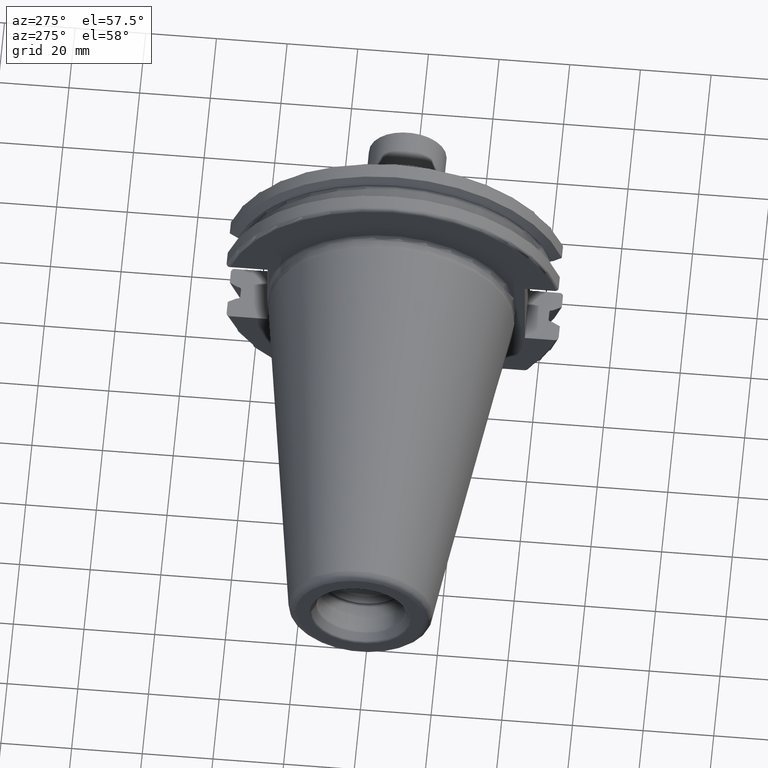
[diagram: clean part render]
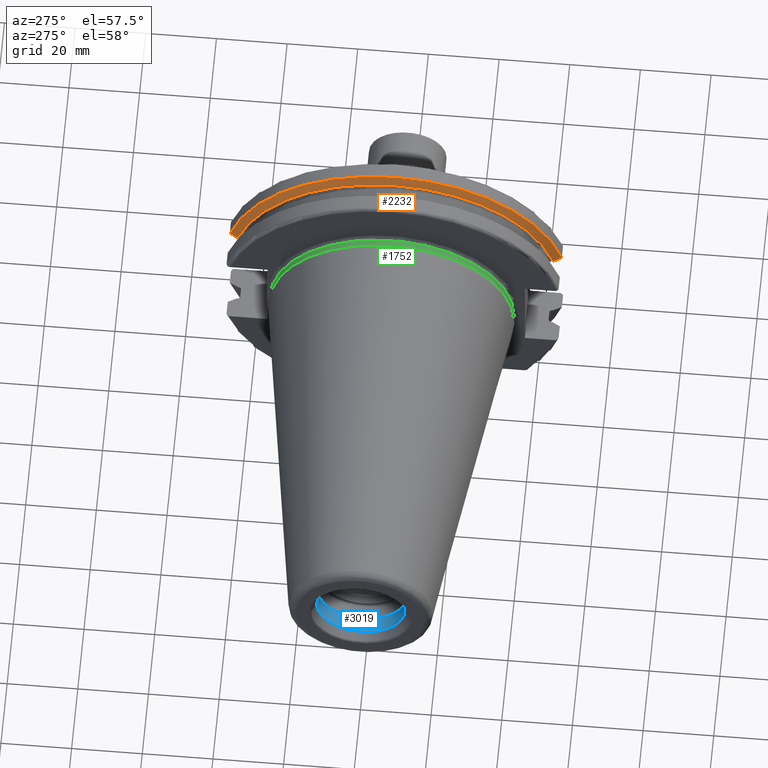
[diagram: same view with three faces highlighted in distinct colors, each labeled with its STEP entity id]
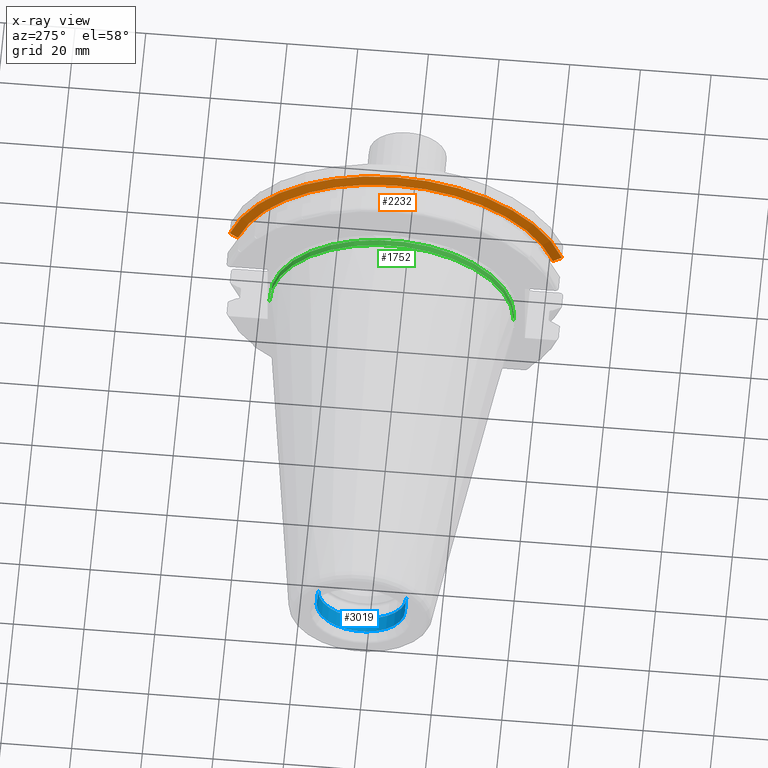
[diagram: x-ray of the same camera — body ghosted, the three highlighted faces saturated]
A machine part, auxiliary view with three faces highlighted in distinct colors.
The next image is the same camera in x-ray (body ghosted, the three faces saturated) — at least one of them is partly hidden behind the body in this view.
Their STEP definitions:

[orange] entity #2232 — the highlighted conical surface has half-angle 60 deg.
#457=CARTESIAN_POINT('',(1.441537838583E1,4.699929686974E1,1.29E1));
#458=CARTESIAN_POINT('',(1.426451908496E1,4.672833723043E1,1.29E1));
#459=CARTESIAN_POINT('',(1.396501135619E1,4.619006057422E1,1.29E1));
#460=CARTESIAN_POINT('',(1.352242021955E1,4.539363402665E1,1.29E1));
#461=CARTESIAN_POINT('',(1.323173924582E1,4.486988275438E1,1.29E1));
#462=CARTESIAN_POINT('',(1.30875E1,4.460981716077E1,1.29E1));
#464=CARTESIAN_POINT('',(1.30875E1,-4.460981716077E1,1.29E1));
#465=CARTESIAN_POINT('',(1.323171622645E1,-4.486984125009E1,1.29E1));
#466=CARTESIAN_POINT('',(1.352236645045E1,-4.539353719098E1,1.29E1));
#467=CARTESIAN_POINT('',(1.396495664446E1,-4.618996220278E1,1.29E1));
#468=CARTESIAN_POINT('',(1.426449561388E1,-4.672829507383E1,1.29E1));
#469=CARTESIAN_POINT('',(1.441537838583E1,-4.699929686974E1,1.29E1));
#471=CARTESIAN_POINT('',(1.30875E1,0.E0,0.E0));
#472=DIRECTION('',(1.E0,0.E0,0.E0));
#473=DIRECTION('',(0.E0,9.606411165078E-1,2.777924499957E-1));
#474=AXIS2_PLACEMENT_3D('',#471,#472,#473);
#502=CARTESIAN_POINT('',(1.441537838583E1,0.E0,0.E0));
#503=DIRECTION('',(1.E0,0.E0,0.E0));
#504=DIRECTION('',(0.E0,9.643354064066E-1,2.646832521159E-1));
#505=AXIS2_PLACEMENT_3D('',#502,#503,#504);
#1436=CARTESIAN_POINT('',(1.30875E1,4.460981716077E1,1.29E1));
#1437=VERTEX_POINT('',#1436);
#1446=CARTESIAN_POINT('',(1.30875E1,-4.460981716077E1,1.29E1));
#1447=VERTEX_POINT('',#1446);
#1448=VERTEX_POINT('',#457);
#1449=VERTEX_POINT('',#469);
#2220=CARTESIAN_POINT('',(1.375143919291E1,0.E0,0.E0));
#2221=DIRECTION('',(1.E0,0.E0,0.E0));
#2222=DIRECTION('',(0.E0,-1.E0,0.E0));
#2223=AXIS2_PLACEMENT_3D('',#2220,#2221,#2222);
#2224=CONICAL_SURFACE('',#2223,4.758752358474E1,6.E1);
#2225=ORIENTED_EDGE('',*,*,#2080,.F.);
#2227=ORIENTED_EDGE('',*,*,#2226,.T.);
#2228=ORIENTED_EDGE('',*,*,#2121,.F.);
#2229=ORIENTED_EDGE('',*,*,#2184,.F.);
#2230=EDGE_LOOP('',(#2225,#2227,#2228,#2229));
#2231=FACE_OUTER_BOUND('',#2230,.F.);
#2232=ADVANCED_FACE('',(#2231),#2224,.T.);
#463=B_SPLINE_CURVE_WITH_KNOTS('',3,(#457,#458,#459,#460,#461,#462),
.UNSPECIFIED.,.F.,.F.,(4,1,1,4),(0.E0,3.333333333333E-1,6.666666666667E-1,1.E0),
.UNSPECIFIED.);
#470=B_SPLINE_CURVE_WITH_KNOTS('',3,(#464,#465,#466,#467,#468,#469),
.UNSPECIFIED.,.F.,.F.,(4,1,1,4),(0.E0,3.333333333333E-1,6.666666666667E-1,1.E0),
.UNSPECIFIED.);
#475=CIRCLE('',#474,4.643754716948E1);
#506=CIRCLE('',#505,4.87375E1);
#2080=EDGE_CURVE('',#1448,#1437,#463,.T.);
#2121=EDGE_CURVE('',#1447,#1449,#470,.T.);
#2184=EDGE_CURVE('',#1437,#1447,#475,.T.);
#2226=EDGE_CURVE('',#1448,#1449,#506,.T.);

[blue] entity #3019 — the highlighted cylindrical surface (partial cylindrical patch) has radius 12.5053 mm, axis along (1, 0, 0).
#1182=CARTESIAN_POINT('',(-9.879665770144E1,0.E0,0.E0));
#1183=DIRECTION('',(-1.E0,0.E0,0.E0));
#1184=DIRECTION('',(0.E0,1.E0,0.E0));
#1185=AXIS2_PLACEMENT_3D('',#1182,#1183,#1184);
#1192=DIRECTION('',(-1.E0,0.E0,0.E0));
#1193=VECTOR('',#1192,4.446657701442E0);
#1194=CARTESIAN_POINT('',(-9.435E1,1.250525E1,0.E0));
#1195=LINE('',#1194,#1193);
#1196=CARTESIAN_POINT('',(-9.435E1,0.E0,0.E0));
#1197=DIRECTION('',(-1.E0,0.E0,0.E0));
#1198=DIRECTION('',(0.E0,1.E0,0.E0));
#1199=AXIS2_PLACEMENT_3D('',#1196,#1197,#1198);
#1201=DIRECTION('',(-1.E0,0.E0,0.E0));
#1202=VECTOR('',#1201,4.446657701442E0);
#1203=CARTESIAN_POINT('',(-9.435E1,-1.250525E1,0.E0));
#1204=LINE('',#1203,#1202);
#1374=CARTESIAN_POINT('',(-9.435E1,1.250525E1,0.E0));
#1375=VERTEX_POINT('',#1374);
#1376=CARTESIAN_POINT('',(-9.879665770144E1,1.250525E1,0.E0));
#1377=VERTEX_POINT('',#1376);
#1396=CARTESIAN_POINT('',(-9.435E1,-1.250525E1,0.E0));
#1397=VERTEX_POINT('',#1396);
#1398=CARTESIAN_POINT('',(-9.879665770144E1,-1.250525E1,0.E0));
#1399=VERTEX_POINT('',#1398);
#3005=CARTESIAN_POINT('',(-1.051116964461E2,0.E0,0.E0));
#3006=DIRECTION('',(1.E0,0.E0,0.E0));
#3007=DIRECTION('',(0.E0,-1.E0,0.E0));
#3008=AXIS2_PLACEMENT_3D('',#3005,#3006,#3007);
#3009=CYLINDRICAL_SURFACE('',#3008,1.250525E1);
#3011=ORIENTED_EDGE('',*,*,#3010,.F.);
#3013=ORIENTED_EDGE('',*,*,#3012,.T.);
#3015=ORIENTED_EDGE('',*,*,#3014,.T.);
#3016=ORIENTED_EDGE('',*,*,#2998,.F.);
#3017=EDGE_LOOP('',(#3011,#3013,#3015,#3016));
#3018=FACE_OUTER_BOUND('',#3017,.F.);
#3019=ADVANCED_FACE('',(#3018),#3009,.F.);
#1186=CIRCLE('',#1185,1.250525E1);
#1200=CIRCLE('',#1199,1.250525E1);
#2998=EDGE_CURVE('',#1377,#1399,#1186,.T.);
#3010=EDGE_CURVE('',#1375,#1377,#1195,.T.);
#3012=EDGE_CURVE('',#1375,#1397,#1200,.T.);
#3014=EDGE_CURVE('',#1397,#1399,#1204,.T.);

[green] entity #1752 — the highlighted cylindrical surface (partial cylindrical patch) has radius 34.575 mm, axis along (1, 0, 0).
#73=CARTESIAN_POINT('',(5.500000000001E-1,0.E0,0.E0));
#74=DIRECTION('',(1.E0,0.E0,0.E0));
#75=DIRECTION('',(0.E0,1.E0,0.E0));
#76=AXIS2_PLACEMENT_3D('',#73,#74,#75);
#78=CARTESIAN_POINT('',(2.2E0,0.E0,0.E0));
#79=DIRECTION('',(1.E0,0.E0,0.E0));
#80=DIRECTION('',(0.E0,1.E0,0.E0));
#81=AXIS2_PLACEMENT_3D('',#78,#79,#80);
#83=DIRECTION('',(-1.E0,0.E0,0.E0));
#84=VECTOR('',#83,1.65E0);
#85=CARTESIAN_POINT('',(2.2E0,3.4575E1,0.E0));
#86=LINE('',#85,#84);
#87=DIRECTION('',(-1.E0,0.E0,0.E0));
#88=VECTOR('',#87,1.65E0);
#89=CARTESIAN_POINT('',(2.2E0,-3.4575E1,0.E0));
#90=LINE('',#89,#88);
#1348=CARTESIAN_POINT('',(2.2E0,3.4575E1,0.E0));
#1349=CARTESIAN_POINT('',(5.5E-1,3.4575E1,0.E0));
#1350=VERTEX_POINT('',#1348);
#1351=VERTEX_POINT('',#1349);
#1353=CARTESIAN_POINT('',(2.2E0,-3.4575E1,0.E0));
#1355=VERTEX_POINT('',#1353);
#1356=CARTESIAN_POINT('',(5.5E-1,-3.4575E1,0.E0));
#1357=VERTEX_POINT('',#1356);
#1738=CARTESIAN_POINT('',(-1.076325E2,0.E0,0.E0));
#1739=DIRECTION('',(1.E0,0.E0,0.E0));
#1740=DIRECTION('',(0.E0,-1.E0,0.E0));
#1741=AXIS2_PLACEMENT_3D('',#1738,#1739,#1740);
#1742=CYLINDRICAL_SURFACE('',#1741,3.4575E1);
#1744=ORIENTED_EDGE('',*,*,#1743,.F.);
#1746=ORIENTED_EDGE('',*,*,#1745,.T.);
#1748=ORIENTED_EDGE('',*,*,#1747,.T.);
#1749=ORIENTED_EDGE('',*,*,#1731,.F.);
#1750=EDGE_LOOP('',(#1744,#1746,#1748,#1749));
#1751=FACE_OUTER_BOUND('',#1750,.F.);
#1752=ADVANCED_FACE('',(#1751),#1742,.T.);
#77=CIRCLE('',#76,3.4575E1);
#82=CIRCLE('',#81,3.4575E1);
#1731=EDGE_CURVE('',#1351,#1357,#77,.T.);
#1743=EDGE_CURVE('',#1350,#1351,#86,.T.);
#1745=EDGE_CURVE('',#1350,#1355,#82,.T.);
#1747=EDGE_CURVE('',#1355,#1357,#90,.T.);